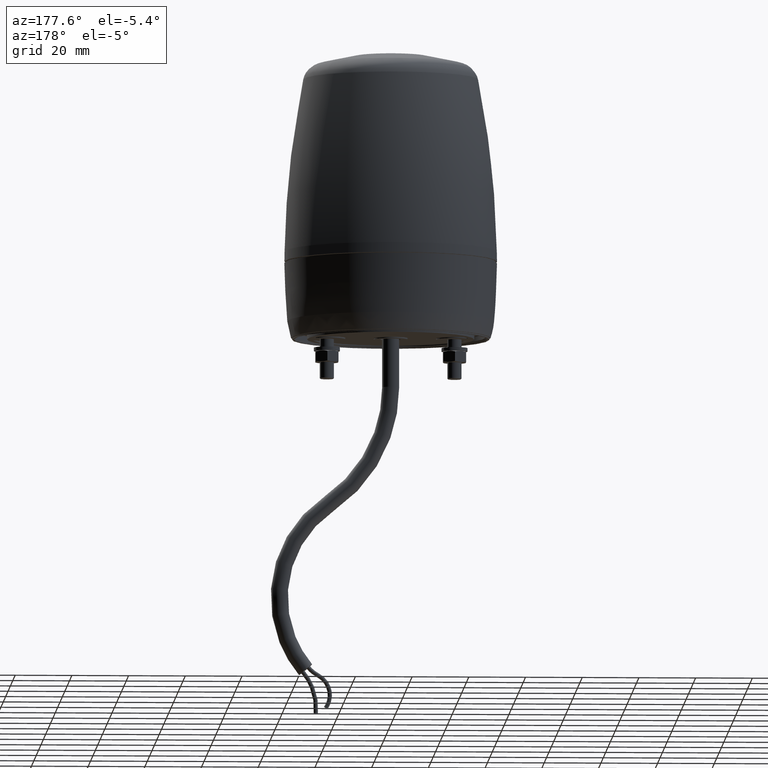
[diagram: clean part render]
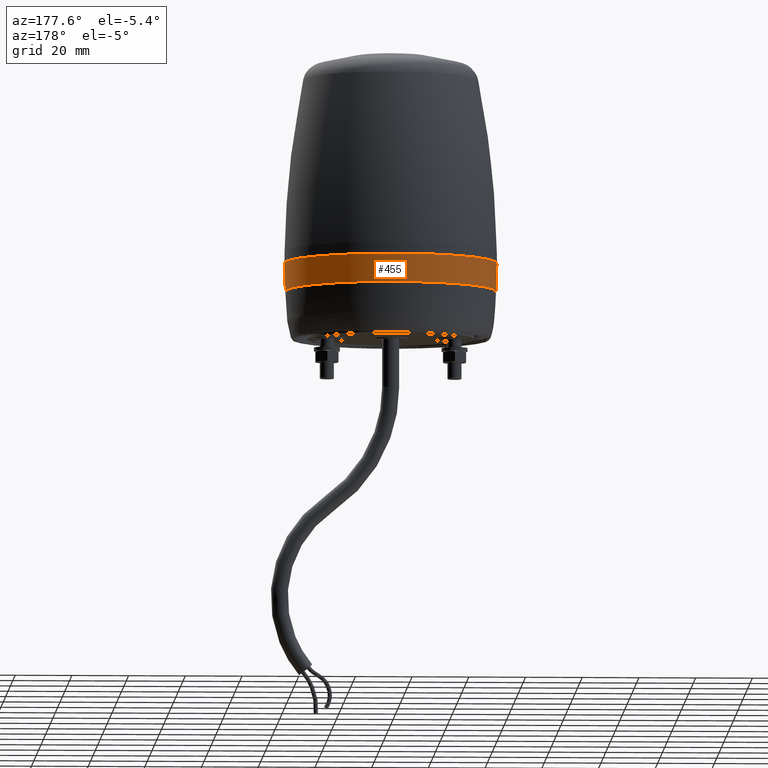
[diagram: same view with one face highlighted and labeled with its STEP entity id]
A machine part, auxiliary view. The second image highlights one B-rep face of the part: STEP entity #455.
In plain terms, the highlighted conical surface has half-angle 2 deg.
Its self-contained STEP definition (entity closure, byte-faithful):
#175=CONICAL_SURFACE('',#2964,37.5,2.0000000000001);
#455=ADVANCED_FACE('',(#1073,#1074),#175,.T.);
#1073=FACE_BOUND('',#1266,.T.);
#1074=FACE_BOUND('',#1267,.T.);
#1266=EDGE_LOOP('',(#1698));
#1267=EDGE_LOOP('',(#1699));
#1698=ORIENTED_EDGE('',*,*,#2530,.T.);
#1699=ORIENTED_EDGE('',*,*,#2531,.F.);
#2248=VERTEX_POINT('',#4503);
#2249=VERTEX_POINT('',#4533);
#2530=EDGE_CURVE('',#2248,#2248,#2765,.T.);
#2531=EDGE_CURVE('',#2249,#2249,#2766,.T.);
#2765=CIRCLE('',#2962,37.1531243347865);
#2766=CIRCLE('',#2963,37.5);
#2962=AXIS2_PLACEMENT_3D('',#4502,#3480,#3481);
#2963=AXIS2_PLACEMENT_3D('',#4532,#3482,#3483);
#2964=AXIS2_PLACEMENT_3D('',#4534,#3484,#3485);
#3480=DIRECTION('',(0.,0.,1.));
#3481=DIRECTION('',(1.,0.,0.));
#3482=DIRECTION('',(0.,0.,1.));
#3483=DIRECTION('',(1.,0.,0.));
#3484=DIRECTION('',(0.,0.,1.));
#3485=DIRECTION('',(1.,0.,2.87440769517E-016));
#4502=CARTESIAN_POINT('',(0.0196824600000306,-0.0196824600000021,10.0190726277477));
#4503=CARTESIAN_POINT('',(37.1728067947865,-0.0196824600000021,10.0190726277477));
#4532=CARTESIAN_POINT('',(0.0196824600000306,-0.0196824600000021,19.9522920344817));
#4533=CARTESIAN_POINT('',(37.51968246,-0.0196824600000021,19.9522920344817));
#4534=CARTESIAN_POINT('',(0.0196824600000306,-0.0196824600000021,19.9522920344817));